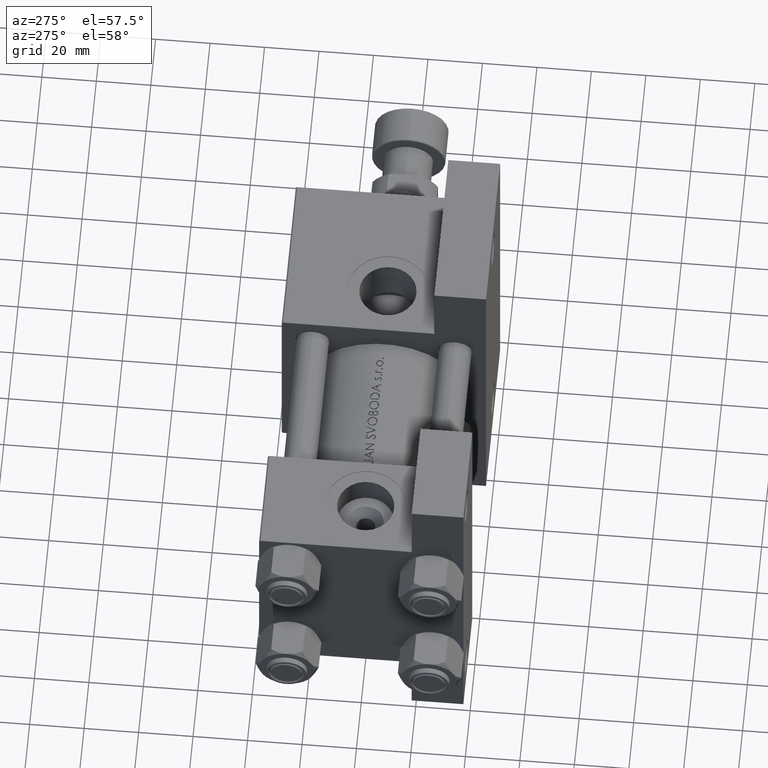
[diagram: clean part render]
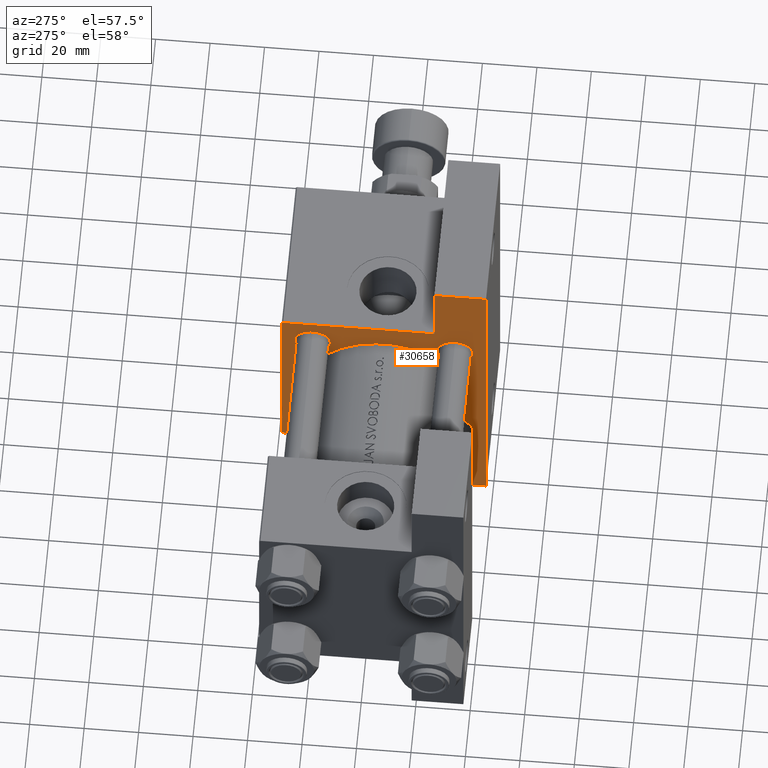
[diagram: same view with one face highlighted and labeled with its STEP entity id]
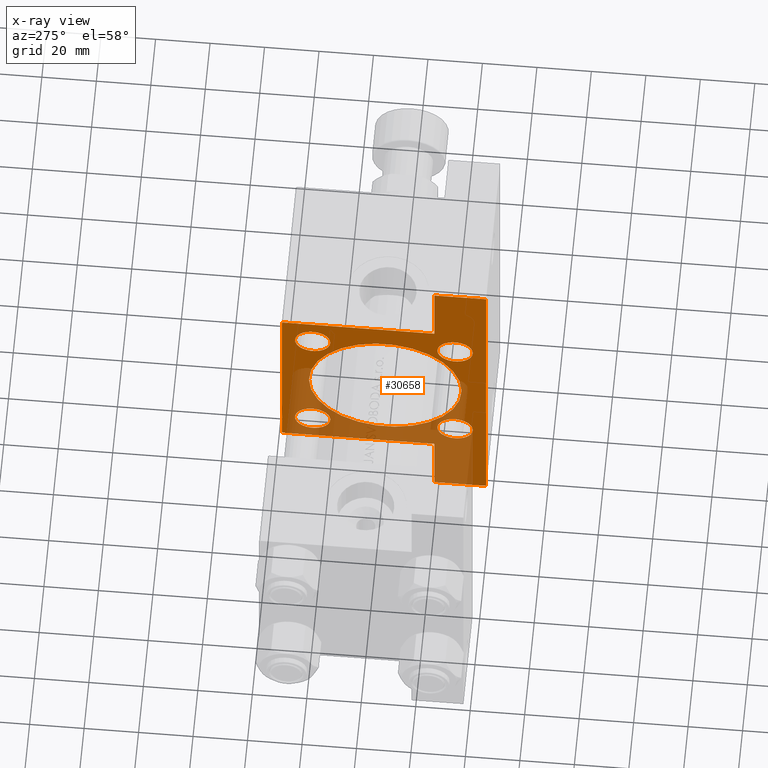
[diagram: x-ray of the same camera — body ghosted, the highlighted face saturated]
A machine part, auxiliary view. The second image highlights one B-rep face of the part: STEP entity #30658.
The next image is the same camera in x-ray: the body ghosted, the highlighted face saturated — about 39% of this face is hidden behind the body in this view.
In plain terms, the highlighted planar face has unit normal (-1, 0, 0).
Its self-contained STEP definition (entity closure, byte-faithful):
#330 = LINE ( 'NONE', #15764, #39683 ) ;
#1621 = ORIENTED_EDGE ( 'NONE', *, *, #1853, .T. ) ;
#1671 = VERTEX_POINT ( 'NONE', #25810 ) ;
#1853 = EDGE_CURVE ( 'NONE', #31200, #23795, #34036, .T. ) ;
#1911 = DIRECTION ( 'NONE',  ( 0.000000000000000000, 0.000000000000000000, 1.000000000000000000 ) ) ;
#1926 = VERTEX_POINT ( 'NONE', #11772 ) ;
#1960 = CIRCLE ( 'NONE', #31836, 6.500000000000008882 ) ;
#2499 = CARTESIAN_POINT ( 'NONE',  ( 95.00000000000000000, 26.14999999999999858, 26.15000000000000213 ) ) ;
#2752 = CIRCLE ( 'NONE', #38288, 6.500000000000008882 ) ;
#2802 = DIRECTION ( 'NONE',  ( 1.000000000000000000, 0.000000000000000000, -0.000000000000000000 ) ) ;
#3234 = CARTESIAN_POINT ( 'NONE',  ( 95.00000000000000000, 26.14999999999999858, -32.65000000000001279 ) ) ;
#3565 = CARTESIAN_POINT ( 'NONE',  ( 95.00000000000000000, 26.14999999999999858, 26.15000000000000213 ) ) ;
#3712 = DIRECTION ( 'NONE',  ( 0.000000000000000000, 0.000000000000000000, -1.000000000000000000 ) ) ;
#3930 = EDGE_CURVE ( 'NONE', #12941, #1671, #35685, .T. ) ;
#4484 = DIRECTION ( 'NONE',  ( 1.000000000000000000, 0.000000000000000000, -0.000000000000000000 ) ) ;
#4588 = VERTEX_POINT ( 'NONE', #38983 ) ;
#4715 = CARTESIAN_POINT ( 'NONE',  ( 95.00000000000000000, -26.14999999999999147, 26.15000000000000924 ) ) ;
#5200 = DIRECTION ( 'NONE',  ( 1.000000000000000000, 0.000000000000000000, -0.000000000000000000 ) ) ;
#5483 = VECTOR ( 'NONE', #3712, 1000.000000000000000 ) ;
#5860 = VERTEX_POINT ( 'NONE', #28072 ) ;
#6048 = DIRECTION ( 'NONE',  ( 0.000000000000000000, 0.000000000000000000, 1.000000000000000000 ) ) ;
#6299 = EDGE_CURVE ( 'NONE', #47713, #9085, #330, .T. ) ;
#6884 = CARTESIAN_POINT ( 'NONE',  ( 95.00000000000000000, 37.50000000000000000, -18.50000000000000355 ) ) ;
#7473 = FACE_BOUND ( 'NONE', #32094, .T. ) ;
#7711 = FACE_BOUND ( 'NONE', #49589, .T. ) ;
#7980 = CARTESIAN_POINT ( 'NONE',  ( 95.00000000000000000, -26.14999999999999147, 26.15000000000000924 ) ) ;
#8909 = CARTESIAN_POINT ( 'NONE',  ( 95.00000000000000000, 3.429011037612588487E-15, -28.50000000000000000 ) ) ;
#9085 = VERTEX_POINT ( 'NONE', #46440 ) ;
#9381 = VERTEX_POINT ( 'NONE', #45836 ) ;
#9433 = VERTEX_POINT ( 'NONE', #46574 ) ;
#9592 = EDGE_CURVE ( 'NONE', #1926, #47654, #13962, .T. ) ;
#9777 = LINE ( 'NONE', #49220, #14131 ) ;
#10298 = CIRCLE ( 'NONE', #45041, 6.500000000000008882 ) ;
#10392 = ORIENTED_EDGE ( 'NONE', *, *, #36188, .T. ) ;
#10842 = CARTESIAN_POINT ( 'NONE',  ( 95.00000000000000000, -37.50000000000000000, 37.49999999999997868 ) ) ;
#11365 = DIRECTION ( 'NONE',  ( -0.000000000000000000, 1.000000000000000000, -0.000000000000000000 ) ) ;
#11738 = ORIENTED_EDGE ( 'NONE', *, *, #23129, .T. ) ;
#11772 = CARTESIAN_POINT ( 'NONE',  ( 95.00000000000000000, 0.000000000000000000, 27.50000000000000000 ) ) ;
#12303 = ORIENTED_EDGE ( 'NONE', *, *, #37683, .T. ) ;
#12325 = CARTESIAN_POINT ( 'NONE',  ( 95.00000000000000000, 26.14999999999999858, -26.15000000000000213 ) ) ;
#12373 = ORIENTED_EDGE ( 'NONE', *, *, #6299, .T. ) ;
#12536 = VERTEX_POINT ( 'NONE', #34826 ) ;
#12941 = VERTEX_POINT ( 'NONE', #20970 ) ;
#13041 = DIRECTION ( 'NONE',  ( 1.000000000000000000, 0.000000000000000000, -0.000000000000000000 ) ) ;
#13653 = CIRCLE ( 'NONE', #46761, 6.499999999999995559 ) ;
#13707 = EDGE_CURVE ( 'NONE', #13992, #25255, #37513, .T. ) ;
#13962 = CIRCLE ( 'NONE', #35755, 28.00000000000000000 ) ;
#13992 = VERTEX_POINT ( 'NONE', #29056 ) ;
#14112 = LINE ( 'NONE', #25244, #44101 ) ;
#14131 = VECTOR ( 'NONE', #29987, 1000.000000000000000 ) ;
#14292 = CARTESIAN_POINT ( 'NONE',  ( 95.00000000000000000, -26.14999999999999147, -32.65000000000002700 ) ) ;
#14597 = CARTESIAN_POINT ( 'NONE',  ( 95.00000000000000000, -26.14999999999999147, -26.15000000000000924 ) ) ;
#14816 = FACE_BOUND ( 'NONE', #36576, .T. ) ;
#15046 = ORIENTED_EDGE ( 'NONE', *, *, #27060, .T. ) ;
#15182 = VECTOR ( 'NONE', #19626, 1000.000000000000000 ) ;
#15189 = EDGE_CURVE ( 'NONE', #9085, #40672, #9777, .T. ) ;
#15309 = FACE_BOUND ( 'NONE', #39966, .T. ) ;
#15524 = ORIENTED_EDGE ( 'NONE', *, *, #25002, .F. ) ;
#15721 = AXIS2_PLACEMENT_3D ( 'NONE', #26056, #2802, #18221 ) ;
#15764 = CARTESIAN_POINT ( 'NONE',  ( 95.00000000000000000, 37.25000000000000000, 37.25000000000000000 ) ) ;
#15926 = DIRECTION ( 'NONE',  ( 0.000000000000000000, 0.000000000000000000, 1.000000000000000000 ) ) ;
#17051 = ORIENTED_EDGE ( 'NONE', *, *, #3930, .T. ) ;
#17224 = ORIENTED_EDGE ( 'NONE', *, *, #48167, .T. ) ;
#17625 = AXIS2_PLACEMENT_3D ( 'NONE', #22691, #34304, #45968 ) ;
#17902 = CIRCLE ( 'NONE', #19520, 6.499999999999995559 ) ;
#17909 = DIRECTION ( 'NONE',  ( 0.000000000000000000, -1.000000000000000000, -1.850371707708594316E-16 ) ) ;
#18221 = DIRECTION ( 'NONE',  ( 0.000000000000000000, 0.000000000000000000, 1.000000000000000000 ) ) ;
#18578 = ORIENTED_EDGE ( 'NONE', *, *, #22108, .F. ) ;
#19134 = ORIENTED_EDGE ( 'NONE', *, *, #24959, .T. ) ;
#19183 = LINE ( 'NONE', #10842, #40903 ) ;
#19520 = AXIS2_PLACEMENT_3D ( 'NONE', #3565, #31343, #15926 ) ;
#19626 = DIRECTION ( 'NONE',  ( 0.000000000000000000, 0.000000000000000000, -1.000000000000000000 ) ) ;
#20891 = CIRCLE ( 'NONE', #27325, 6.500000000000008882 ) ;
#20970 = CARTESIAN_POINT ( 'NONE',  ( 95.00000000000000000, -26.14999999999999147, 32.65000000000001990 ) ) ;
#21116 = DIRECTION ( 'NONE',  ( 5.337610695313252371E-16, 1.000000000000000000, 0.000000000000000000 ) ) ;
#21154 = AXIS2_PLACEMENT_3D ( 'NONE', #38050, #26181, #49217 ) ;
#21230 = EDGE_CURVE ( 'NONE', #5860, #39134, #40561, .T. ) ;
#21746 = DIRECTION ( 'NONE',  ( 0.000000000000000000, 0.000000000000000000, -1.000000000000000000 ) ) ;
#21829 = ORIENTED_EDGE ( 'NONE', *, *, #37485, .F. ) ;
#22108 = EDGE_CURVE ( 'NONE', #23242, #39134, #19183, .T. ) ;
#22691 = CARTESIAN_POINT ( 'NONE',  ( 95.00000000000000000, 0.000000000000000000, -0.5000000000000004441 ) ) ;
#22754 = CARTESIAN_POINT ( 'NONE',  ( 95.00000000000000000, 63.50000000000000000, -37.50000000000000000 ) ) ;
#23129 = EDGE_CURVE ( 'NONE', #23795, #9381, #34544, .T. ) ;
#23140 = PLANE ( 'NONE',  #21154 ) ;
#23242 = VERTEX_POINT ( 'NONE', #43895 ) ;
#23403 = DIRECTION ( 'NONE',  ( 0.000000000000000000, 0.000000000000000000, 1.000000000000000000 ) ) ;
#23671 = LINE ( 'NONE', #39067, #15182 ) ;
#23750 = ORIENTED_EDGE ( 'NONE', *, *, #21230, .T. ) ;
#23795 = VERTEX_POINT ( 'NONE', #22754 ) ;
#23988 = CARTESIAN_POINT ( 'NONE',  ( 95.00000000000000000, -37.50000000000000000, -18.50000000000000000 ) ) ;
#24591 = CARTESIAN_POINT ( 'NONE',  ( 95.00000000000000000, 26.14999999999999858, -26.15000000000000213 ) ) ;
#24617 = ORIENTED_EDGE ( 'NONE', *, *, #31321, .T. ) ;
#24919 = CIRCLE ( 'NONE', #17625, 28.00000000000000000 ) ;
#24959 = EDGE_CURVE ( 'NONE', #25255, #13992, #10298, .T. ) ;
#25002 = EDGE_CURVE ( 'NONE', #5860, #9381, #23671, .T. ) ;
#25244 = CARTESIAN_POINT ( 'NONE',  ( 95.00000000000000000, 37.50000000000000000, 37.49999999999999289 ) ) ;
#25255 = VERTEX_POINT ( 'NONE', #14292 ) ;
#25522 = VECTOR ( 'NONE', #35809, 1000.000000000000000 ) ;
#25810 = CARTESIAN_POINT ( 'NONE',  ( 95.00000000000000000, -26.14999999999999147, 19.65000000000000213 ) ) ;
#26056 = CARTESIAN_POINT ( 'NONE',  ( 95.00000000000000000, -26.14999999999999147, -26.15000000000000924 ) ) ;
#26181 = DIRECTION ( 'NONE',  ( -1.000000000000000000, -0.000000000000000000, 0.000000000000000000 ) ) ;
#26711 = DIRECTION ( 'NONE',  ( 1.000000000000000000, 0.000000000000000000, -0.000000000000000000 ) ) ;
#26745 = DIRECTION ( 'NONE',  ( 0.000000000000000000, 0.000000000000000000, 1.000000000000000000 ) ) ;
#26784 = CARTESIAN_POINT ( 'NONE',  ( 95.00000000000000000, 63.50000000000000000, -18.50000000000000000 ) ) ;
#26852 = ORIENTED_EDGE ( 'NONE', *, *, #32589, .T. ) ;
#27060 = EDGE_CURVE ( 'NONE', #42091, #9433, #20891, .T. ) ;
#27070 = VECTOR ( 'NONE', #11365, 1000.000000000000000 ) ;
#27325 = AXIS2_PLACEMENT_3D ( 'NONE', #12325, #4484, #26745 ) ;
#27586 = ORIENTED_EDGE ( 'NONE', *, *, #42258, .T. ) ;
#28072 = CARTESIAN_POINT ( 'NONE',  ( 94.99999999999998579, -63.50000000000000000, -18.50000000000000000 ) ) ;
#28692 = CARTESIAN_POINT ( 'NONE',  ( 94.99999999999998579, -63.50000000000000000, -18.50000000000000000 ) ) ;
#29056 = CARTESIAN_POINT ( 'NONE',  ( 95.00000000000000000, -26.14999999999999147, -19.65000000000000213 ) ) ;
#29987 = DIRECTION ( 'NONE',  ( 0.000000000000000000, 0.000000000000000000, -1.000000000000000000 ) ) ;
#30468 = ORIENTED_EDGE ( 'NONE', *, *, #32974, .T. ) ;
#30658 = ADVANCED_FACE ( 'NONE', ( #15309, #42347, #7711, #14816, #7473, #34010 ), #23140, .T. ) ;
#31200 = VERTEX_POINT ( 'NONE', #33141 ) ;
#31251 = VECTOR ( 'NONE', #38082, 1000.000000000000000 ) ;
#31274 = ORIENTED_EDGE ( 'NONE', *, *, #13707, .T. ) ;
#31321 = EDGE_CURVE ( 'NONE', #12536, #40911, #17902, .T. ) ;
#31343 = DIRECTION ( 'NONE',  ( 1.000000000000000000, 0.000000000000000000, -0.000000000000000000 ) ) ;
#31836 = AXIS2_PLACEMENT_3D ( 'NONE', #24591, #40259, #43823 ) ;
#32094 = EDGE_LOOP ( 'NONE', ( #39068, #27586 ) ) ;
#32589 = EDGE_CURVE ( 'NONE', #1671, #12941, #2752, .T. ) ;
#32871 = CARTESIAN_POINT ( 'NONE',  ( 95.00000000000000000, 0.000000000000000000, -0.5000000000000004441 ) ) ;
#32974 = EDGE_CURVE ( 'NONE', #9433, #42091, #1960, .T. ) ;
#33141 = CARTESIAN_POINT ( 'NONE',  ( 95.00000000000000000, 63.50000000000000000, -18.50000000000000000 ) ) ;
#34010 = FACE_OUTER_BOUND ( 'NONE', #43459, .T. ) ;
#34036 = LINE ( 'NONE', #38318, #5483 ) ;
#34304 = DIRECTION ( 'NONE',  ( 1.000000000000000000, 0.000000000000000000, 0.000000000000000000 ) ) ;
#34544 = LINE ( 'NONE', #42376, #31251 ) ;
#34594 = DIRECTION ( 'NONE',  ( 0.000000000000000000, -9.251858538542972814E-17, -1.000000000000000000 ) ) ;
#34826 = CARTESIAN_POINT ( 'NONE',  ( 95.00000000000000000, 26.14999999999999858, 19.65000000000000568 ) ) ;
#35229 = VECTOR ( 'NONE', #21116, 1000.000000000000000 ) ;
#35685 = CIRCLE ( 'NONE', #46210, 6.500000000000008882 ) ;
#35755 = AXIS2_PLACEMENT_3D ( 'NONE', #32871, #40958, #21746 ) ;
#35809 = DIRECTION ( 'NONE',  ( -0.000000000000000000, 0.7071067811865672237, 0.7071067811865279218 ) ) ;
#36188 = EDGE_CURVE ( 'NONE', #40672, #31200, #45522, .T. ) ;
#36576 = EDGE_LOOP ( 'NONE', ( #31274, #19134 ) ) ;
#37382 = DIRECTION ( 'NONE',  ( 1.000000000000000000, 0.000000000000000000, -0.000000000000000000 ) ) ;
#37485 = EDGE_CURVE ( 'NONE', #47713, #4588, #14112, .T. ) ;
#37513 = CIRCLE ( 'NONE', #15721, 6.500000000000008882 ) ;
#37683 = EDGE_CURVE ( 'NONE', #23242, #4588, #42646, .T. ) ;
#38050 = CARTESIAN_POINT ( 'NONE',  ( 95.00000000000000000, 0.000000000000000000, 0.000000000000000000 ) ) ;
#38082 = DIRECTION ( 'NONE',  ( 0.000000000000000000, -1.000000000000000000, 0.000000000000000000 ) ) ;
#38288 = AXIS2_PLACEMENT_3D ( 'NONE', #7980, #5200, #23403 ) ;
#38318 = CARTESIAN_POINT ( 'NONE',  ( 95.00000000000000000, 63.50000000000000000, -18.50000000000000000 ) ) ;
#38983 = CARTESIAN_POINT ( 'NONE',  ( 95.00000000000000000, -36.99999999999997158, 37.49999999999997868 ) ) ;
#39067 = CARTESIAN_POINT ( 'NONE',  ( 94.99999999999998579, -63.50000000000000000, -18.50000000000000000 ) ) ;
#39068 = ORIENTED_EDGE ( 'NONE', *, *, #9592, .T. ) ;
#39134 = VERTEX_POINT ( 'NONE', #23988 ) ;
#39683 = VECTOR ( 'NONE', #42567, 1000.000000000000114 ) ;
#39966 = EDGE_LOOP ( 'NONE', ( #17051, #26852 ) ) ;
#40259 = DIRECTION ( 'NONE',  ( 1.000000000000000000, 0.000000000000000000, -0.000000000000000000 ) ) ;
#40561 = LINE ( 'NONE', #28692, #35229 ) ;
#40672 = VERTEX_POINT ( 'NONE', #6884 ) ;
#40903 = VECTOR ( 'NONE', #34594, 1000.000000000000000 ) ;
#40911 = VERTEX_POINT ( 'NONE', #44953 ) ;
#40958 = DIRECTION ( 'NONE',  ( 1.000000000000000000, 0.000000000000000000, 0.000000000000000000 ) ) ;
#41726 = EDGE_LOOP ( 'NONE', ( #17224, #24617 ) ) ;
#42091 = VERTEX_POINT ( 'NONE', #3234 ) ;
#42139 = DIRECTION ( 'NONE',  ( 0.000000000000000000, 0.000000000000000000, 1.000000000000000000 ) ) ;
#42258 = EDGE_CURVE ( 'NONE', #47654, #1926, #24919, .T. ) ;
#42347 = FACE_BOUND ( 'NONE', #41726, .T. ) ;
#42376 = CARTESIAN_POINT ( 'NONE',  ( 95.00000000000000000, 37.50000000000000000, -37.50000000000000000 ) ) ;
#42567 = DIRECTION ( 'NONE',  ( 0.000000000000000000, 0.7071067811865474617, -0.7071067811865474617 ) ) ;
#42646 = LINE ( 'NONE', #46456, #25522 ) ;
#43297 = CARTESIAN_POINT ( 'NONE',  ( 95.00000000000000000, 37.00000000000000000, 37.49999999999999289 ) ) ;
#43459 = EDGE_LOOP ( 'NONE', ( #21829, #12373, #45734, #10392, #1621, #11738, #15524, #23750, #18578, #12303 ) ) ;
#43823 = DIRECTION ( 'NONE',  ( 0.000000000000000000, 0.000000000000000000, 1.000000000000000000 ) ) ;
#43895 = CARTESIAN_POINT ( 'NONE',  ( 95.00000000000000000, -37.50000000000000000, 36.99999999999997868 ) ) ;
#44101 = VECTOR ( 'NONE', #17909, 1000.000000000000000 ) ;
#44953 = CARTESIAN_POINT ( 'NONE',  ( 95.00000000000000000, 26.14999999999999858, 32.65000000000000568 ) ) ;
#45041 = AXIS2_PLACEMENT_3D ( 'NONE', #14597, #26711, #42139 ) ;
#45522 = LINE ( 'NONE', #26784, #27070 ) ;
#45734 = ORIENTED_EDGE ( 'NONE', *, *, #15189, .T. ) ;
#45836 = CARTESIAN_POINT ( 'NONE',  ( 94.99999999999998579, -63.50000000000000000, -37.50000000000000000 ) ) ;
#45968 = DIRECTION ( 'NONE',  ( 0.000000000000000000, 0.000000000000000000, -1.000000000000000000 ) ) ;
#46210 = AXIS2_PLACEMENT_3D ( 'NONE', #4715, #13041, #1911 ) ;
#46440 = CARTESIAN_POINT ( 'NONE',  ( 95.00000000000000000, 37.50000000000000000, 36.99999999999999289 ) ) ;
#46456 = CARTESIAN_POINT ( 'NONE',  ( 95.00000000000000000, -37.24999999999894129, 37.25000000000100897 ) ) ;
#46574 = CARTESIAN_POINT ( 'NONE',  ( 95.00000000000000000, 26.14999999999999858, -19.64999999999999503 ) ) ;
#46761 = AXIS2_PLACEMENT_3D ( 'NONE', #2499, #37382, #6048 ) ;
#47654 = VERTEX_POINT ( 'NONE', #8909 ) ;
#47713 = VERTEX_POINT ( 'NONE', #43297 ) ;
#48167 = EDGE_CURVE ( 'NONE', #40911, #12536, #13653, .T. ) ;
#49217 = DIRECTION ( 'NONE',  ( 0.000000000000000000, 0.000000000000000000, 1.000000000000000000 ) ) ;
#49220 = CARTESIAN_POINT ( 'NONE',  ( 95.00000000000000000, 37.50000000000000000, 37.49999999999999289 ) ) ;
#49589 = EDGE_LOOP ( 'NONE', ( #30468, #15046 ) ) ;